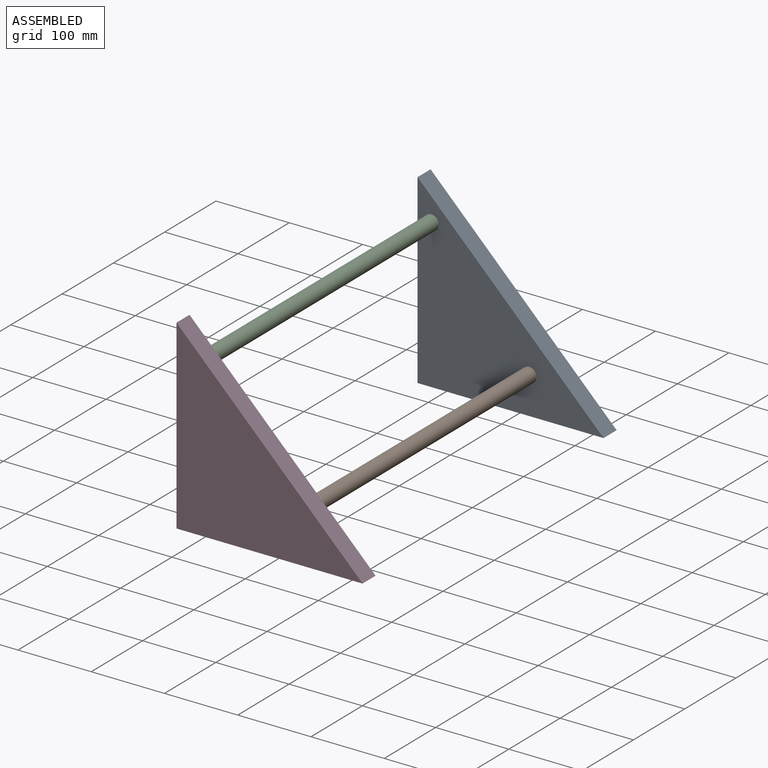
[diagram: assembled view]
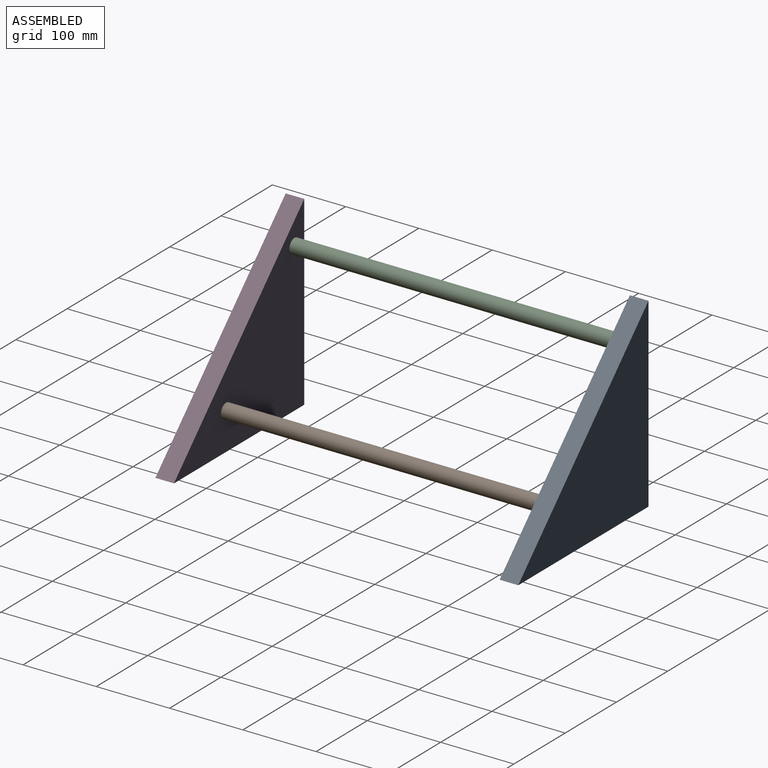
[diagram: assembled view, second angle]
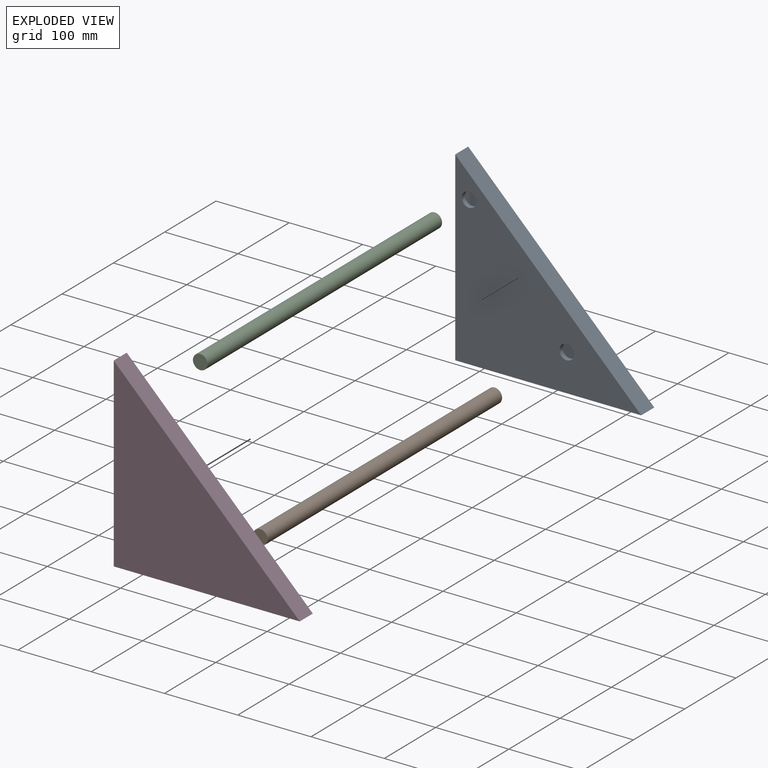
[diagram: exploded view]
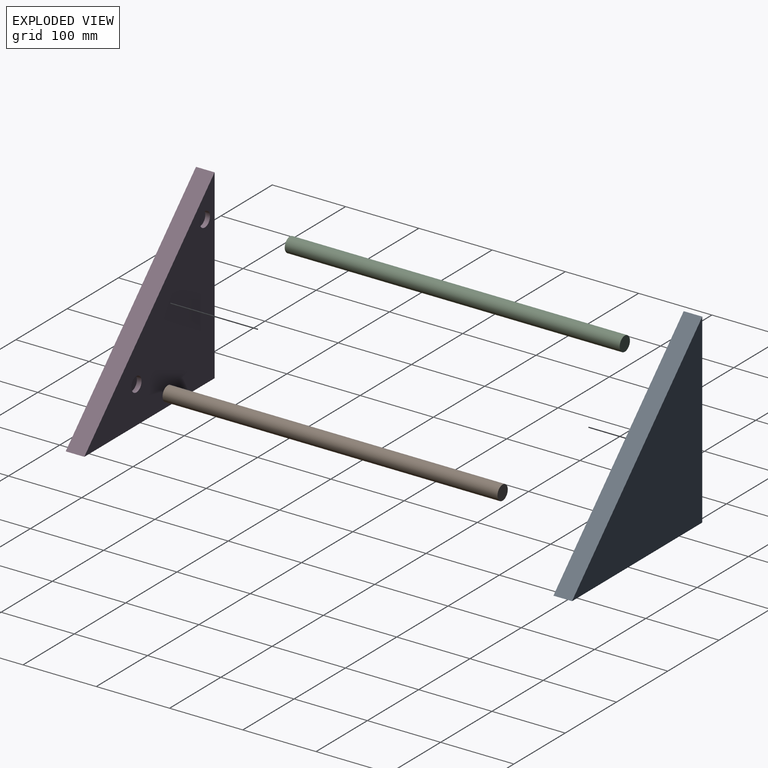
[diagram: exploded view, second angle]
ASSEMBLY  parts=4 mates=3
PART A: 9 faces, bbox 254x25.4x254 mm
  f0: plane 254x25.4mm, normal (-1,0,0), area 6451.6mm2, adj f1,f2,f3,f4
  f1: plane 254x25.4mm, normal (0,0,-1), area 6451.6mm2, adj f0,f2,f3,f4
  f2: plane 254x254mm, normal (0.71,0,0.71), area 9123.9mm2, adj f0,f1,f3,f4
  f3: plane 254x254mm, normal (0,-1,0), area 31627.1mm2, adj f0,f1,f2,f5,f7
  f4: plane 254x254mm, normal (0,1,0), area 32258mm2, adj f0,f1,f2
  f5: cylinder r=10.02mm len=20.04mm, axis (0,-1,0), area 399.8mm2, adj f3,f6
  f6: plane 20.04x20.04mm, normal (0,-1,0), area 315.4mm2, adj f5
  f7: cylinder r=10.02mm len=20.04mm, axis (0,-1,0), area 399.8mm2, adj f3,f8
  f8: plane 20.04x20.04mm, normal (0,-1,0), area 315.4mm2, adj f7
PART B: 3 faces, bbox 20x457.2x20 mm
  f0: cylinder r=9.99mm len=457.2mm, axis (0,1,0), area 28712.1mm2, adj f1,f2
  f1: plane 19.99x19.99mm, normal (0,-1,0), area 313.8mm2, adj f0
  f2: plane 19.99x19.99mm, normal (0,1,0), area 313.8mm2, adj f0
PART C: same geometry as B
PART D: 9 faces, bbox 254x25.4x254 mm
  f0: plane 254x25.4mm, normal (-1,0,0), area 6451.6mm2, adj f1,f2,f3,f4
  f1: plane 254x25.4mm, normal (0,0,-1), area 6451.6mm2, adj f0,f2,f3,f4
  f2: plane 254x254mm, normal (0.71,0,0.71), area 9123.9mm2, adj f0,f1,f3,f4
  f3: plane 254x254mm, normal (0,-1,0), area 32258mm2, adj f0,f1,f2
  f4: plane 254x254mm, normal (0,1,0), area 31627.3mm2, adj f0,f1,f2,f5,f7
  f5: cylinder r=10.02mm len=20.04mm, axis (0,1,0), area 399.7mm2, adj f4,f6
  f6: plane 20.04x20.04mm, normal (0,1,0), area 315.3mm2, adj f5
  f7: cylinder r=10.02mm len=20.04mm, axis (0,1,0), area 399.7mm2, adj f4,f8
  f8: plane 20.04x20.04mm, normal (0,1,0), area 315.3mm2, adj f7
PLACE A t=(13.34,244.16,45.12)mm
PLACE B rot(axis=(1,0,0),180deg) t=(143.78,-232.09,-59.44)mm
PLACE C rot(axis=(1,0,0),180deg) t=(10.43,-232.09,92.96)mm
PLACE D t=(13.34,-225.74,45.12)mm
MATE fastened B.f0 <-> A.f5  axis (0,1,0) through (124.5,225.11,-72.59)mm
MATE fastened D.f7 <-> C.f0  axis (0,1,0) through (-8.85,-232.09,79.81)mm
MATE fastened C.f0 <-> A.f7  axis (0,1,0) through (-8.85,225.11,79.81)mm
